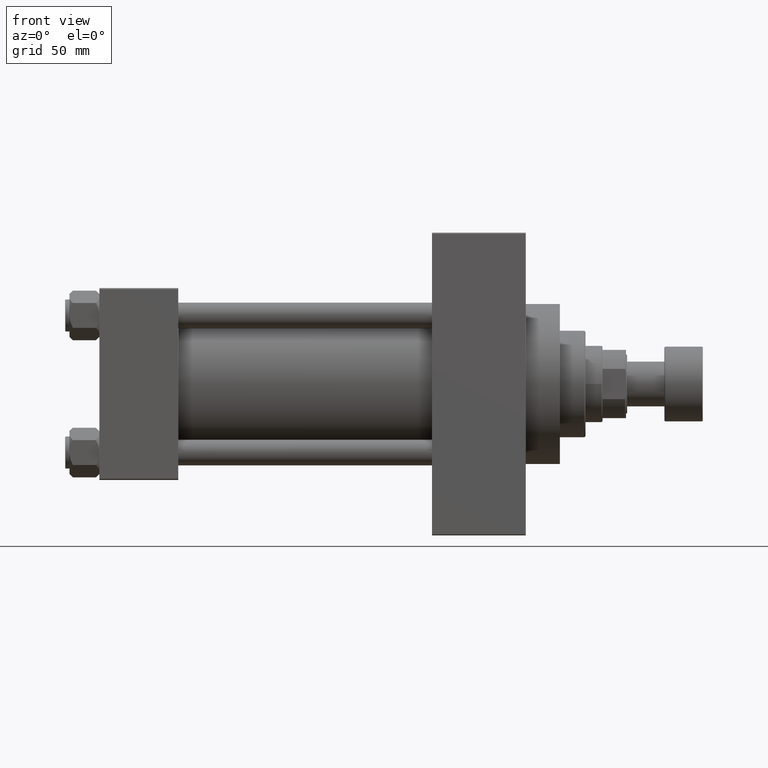
[diagram: clean part render]
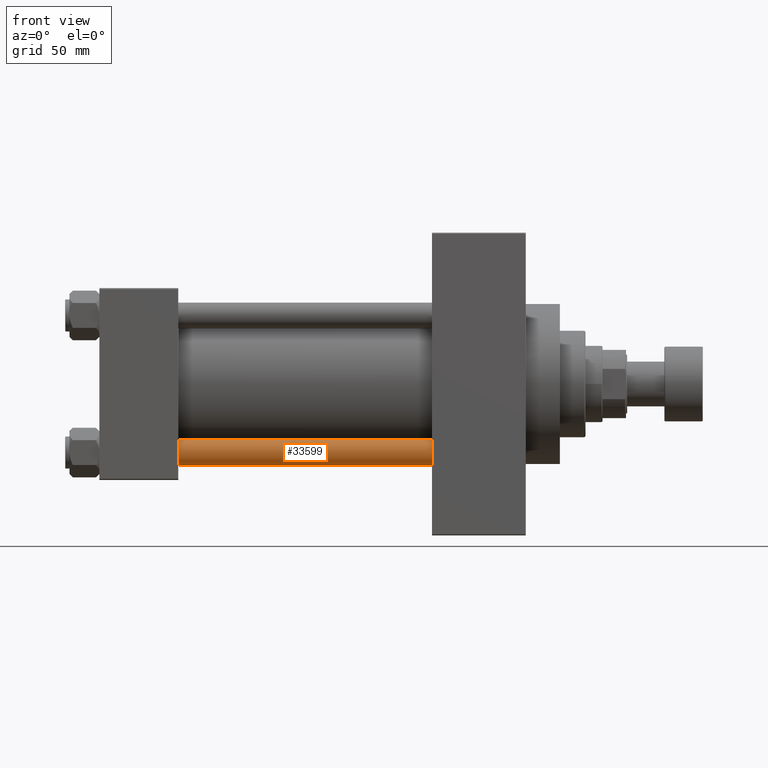
[diagram: same view with one face highlighted and labeled with its STEP entity id]
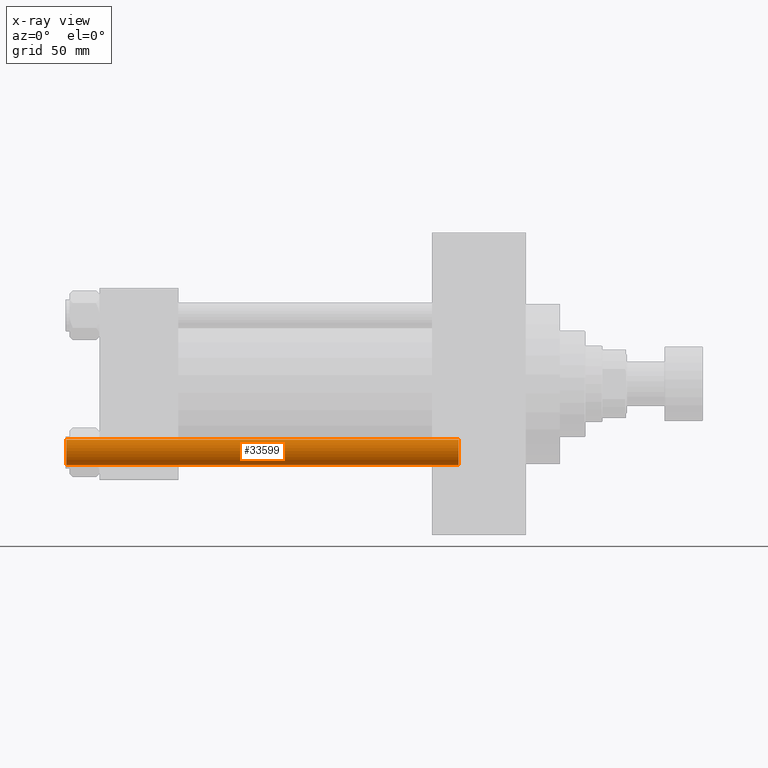
[diagram: x-ray of the same camera — body ghosted, the highlighted face saturated]
A machine part, front view. The second image highlights one B-rep face of the part: STEP entity #33599.
The next image is the same camera in x-ray: the body ghosted, the highlighted face saturated — about 0% of this face is hidden behind the body in this view.
In plain terms, the highlighted cylindrical surface (edge-blend (fillet) strip) has radius 6 mm, axis along (1, 0, 0).
Its self-contained STEP definition (entity closure, byte-faithful):
#1208 = DIRECTION ( 'NONE',  ( 0.000000000000000000, 0.000000000000000000, -1.000000000000000000 ) ) ;
#1683 = CARTESIAN_POINT ( 'NONE',  ( 0.000000000000000000, 0.000000000000000000, 184.5000000000000000 ) ) ;
#3459 = CIRCLE ( 'NONE', #38890, 6.000000000000000888 ) ;
#5196 = ORIENTED_EDGE ( 'NONE', *, *, #39374, .T. ) ;
#5282 = CARTESIAN_POINT ( 'NONE',  ( 6.000000000000000888, 7.347880794884120722E-16, 0.5000000000000281997 ) ) ;
#6947 = DIRECTION ( 'NONE',  ( -0.000000000000000000, -0.000000000000000000, -1.000000000000000000 ) ) ;
#11290 = DIRECTION ( 'NONE',  ( -0.000000000000000000, -0.000000000000000000, 1.000000000000000000 ) ) ;
#14272 = CARTESIAN_POINT ( 'NONE',  ( 0.000000000000000000, 0.000000000000000000, 185.0000000000000000 ) ) ;
#14350 = VECTOR ( 'NONE', #30979, 1000.000000000000000 ) ;
#14516 = DIRECTION ( 'NONE',  ( -0.000000000000000000, -0.000000000000000000, -1.000000000000000000 ) ) ;
#14537 = EDGE_CURVE ( 'NONE', #24407, #29141, #16267, .T. ) ;
#16267 = LINE ( 'NONE', #41126, #14350 ) ;
#17334 = CARTESIAN_POINT ( 'NONE',  ( -6.000000000000000888, 0.000000000000000000, 184.5000000000000000 ) ) ;
#17656 = CYLINDRICAL_SURFACE ( 'NONE', #37085, 6.000000000000000888 ) ;
#17815 = CIRCLE ( 'NONE', #19276, 6.000000000000000888 ) ;
#18170 = ORIENTED_EDGE ( 'NONE', *, *, #14537, .F. ) ;
#19276 = AXIS2_PLACEMENT_3D ( 'NONE', #1683, #1208, #27473 ) ;
#20395 = VERTEX_POINT ( 'NONE', #5282 ) ;
#21798 = ORIENTED_EDGE ( 'NONE', *, *, #31017, .T. ) ;
#23986 = VERTEX_POINT ( 'NONE', #24390 ) ;
#24390 = CARTESIAN_POINT ( 'NONE',  ( 6.000000000000000888, 7.347880794884120722E-16, 184.5000000000000000 ) ) ;
#24407 = VERTEX_POINT ( 'NONE', #17334 ) ;
#24599 = EDGE_CURVE ( 'NONE', #23986, #20395, #43371, .T. ) ;
#25885 = CARTESIAN_POINT ( 'NONE',  ( -6.000000000000000888, 0.000000000000000000, 0.5000000000000281997 ) ) ;
#27473 = DIRECTION ( 'NONE',  ( 1.000000000000000000, 0.000000000000000000, 0.000000000000000000 ) ) ;
#29141 = VERTEX_POINT ( 'NONE', #25885 ) ;
#29857 = DIRECTION ( 'NONE',  ( 1.000000000000000000, 0.000000000000000000, 0.000000000000000000 ) ) ;
#30979 = DIRECTION ( 'NONE',  ( -0.000000000000000000, -0.000000000000000000, -1.000000000000000000 ) ) ;
#31017 = EDGE_CURVE ( 'NONE', #24407, #23986, #17815, .T. ) ;
#32382 = DIRECTION ( 'NONE',  ( -1.000000000000000000, 0.000000000000000000, 0.000000000000000000 ) ) ;
#33599 = ADVANCED_FACE ( 'NONE', ( #40094 ), #17656, .T. ) ;
#37085 = AXIS2_PLACEMENT_3D ( 'NONE', #14272, #14516, #32382 ) ;
#38052 = EDGE_LOOP ( 'NONE', ( #21798, #43818, #5196, #18170 ) ) ;
#38890 = AXIS2_PLACEMENT_3D ( 'NONE', #47708, #11290, #29857 ) ;
#39374 = EDGE_CURVE ( 'NONE', #20395, #29141, #3459, .T. ) ;
#40094 = FACE_OUTER_BOUND ( 'NONE', #38052, .T. ) ;
#41126 = CARTESIAN_POINT ( 'NONE',  ( -6.000000000000000888, 0.000000000000000000, 185.0000000000000000 ) ) ;
#43371 = LINE ( 'NONE', #44319, #46890 ) ;
#43818 = ORIENTED_EDGE ( 'NONE', *, *, #24599, .T. ) ;
#44319 = CARTESIAN_POINT ( 'NONE',  ( 6.000000000000000888, 7.347880794884120722E-16, 185.0000000000000000 ) ) ;
#46890 = VECTOR ( 'NONE', #6947, 1000.000000000000000 ) ;
#47708 = CARTESIAN_POINT ( 'NONE',  ( 0.000000000000000000, 0.000000000000000000, 0.5000000000000281997 ) ) ;